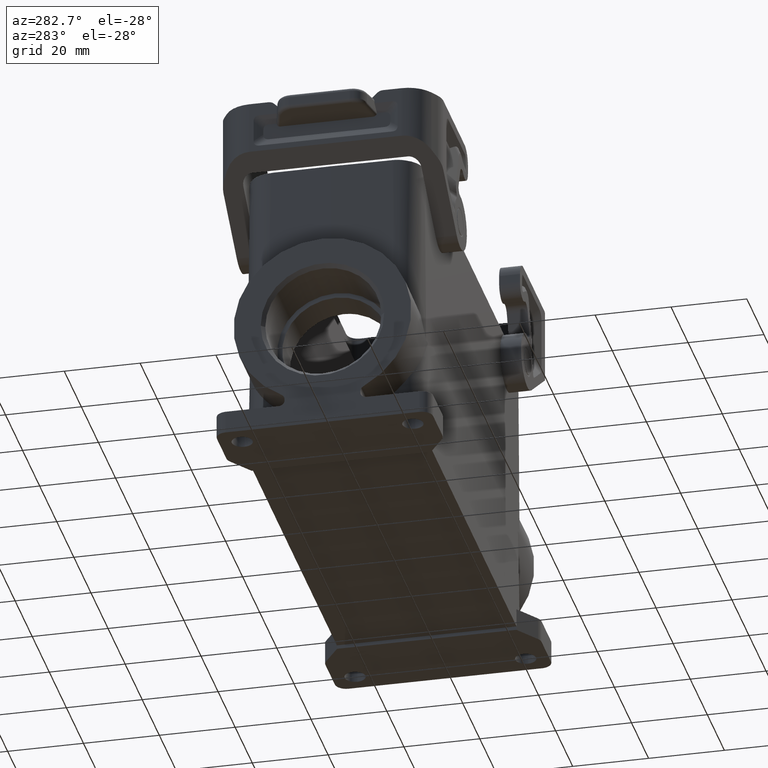
[diagram: clean part render]
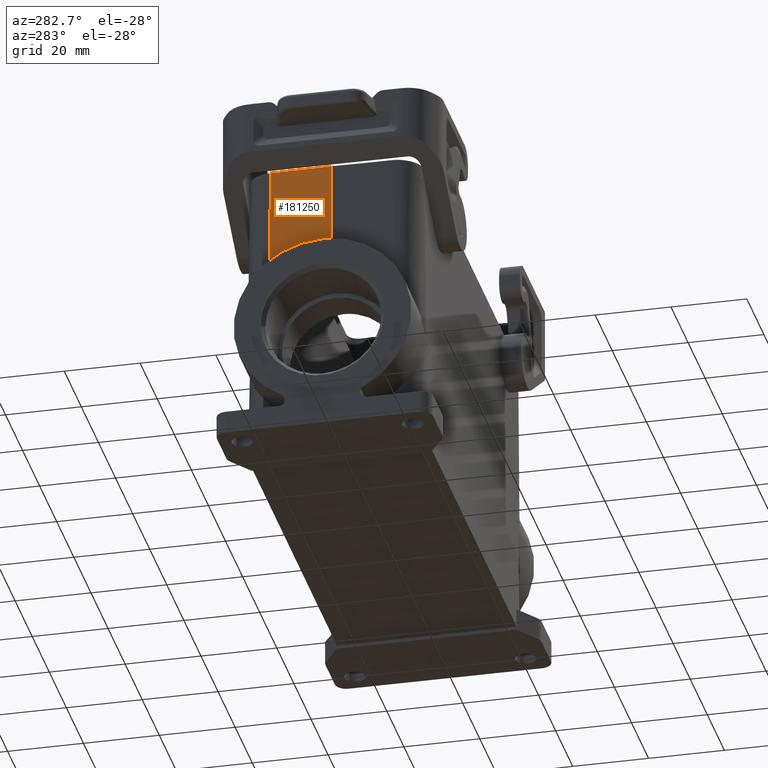
[diagram: same view with one face highlighted and labeled with its STEP entity id]
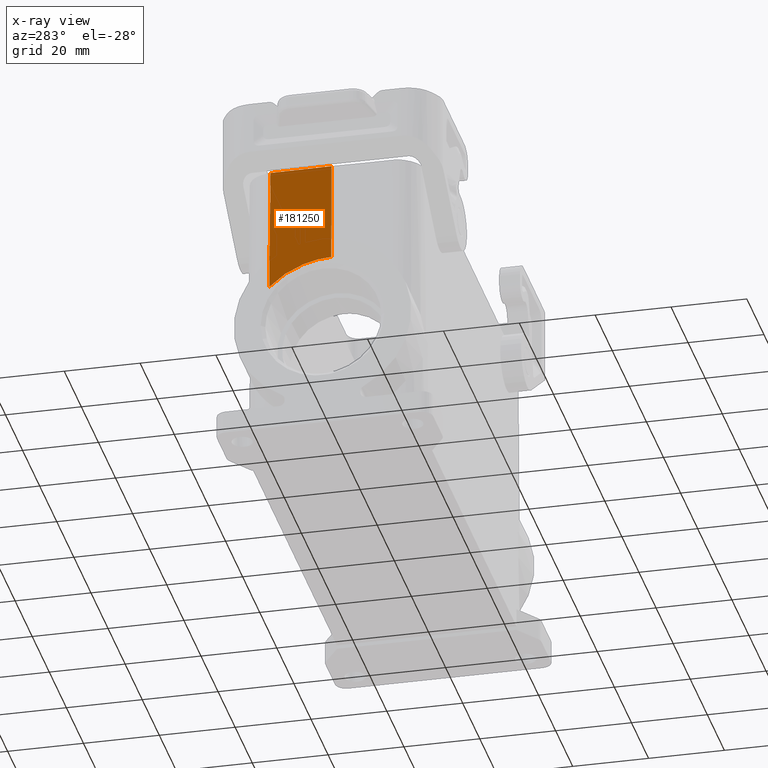
[diagram: x-ray of the same camera — body ghosted, the highlighted face saturated]
A machine part, auxiliary view. The second image highlights one B-rep face of the part: STEP entity #181250.
The next image is the same camera in x-ray: the body ghosted, the highlighted face saturated — about 0% of this face is hidden behind the body in this view.
In plain terms, the highlighted planar face has unit normal (0.9998, -0.0175, -0.0087).
Its self-contained STEP definition (entity closure, byte-faithful):
#5320=CARTESIAN_POINT('',(-87.7503613048472,-9.67116730991909,
-16.412789810437));
#5330=VERTEX_POINT('',#5320);
#5360=CARTESIAN_POINT('',(-88.1828454070989,-26.399607,
-6.06650146783849E-14));
#5370=DIRECTION('',(0.999809624019864,-0.00872520640474936,
0.0174524064372842));
#5380=DIRECTION('',(0.019511937814006,0.447087594178678,
-0.894277343677153));
#5390=AXIS2_PLACEMENT_3D('',#5360,#5370,#5380);
#5400=ELLIPSE('',#5390,23.4399134018829,23.4354510053947);
#5410=CARTESIAN_POINT('',(-87.9783273245581,-2.96415599460525,
4.07274228209724E-13));
#5420=VERTEX_POINT('',#5410);
#5430=EDGE_CURVE('',#5330,#5420,#5400,.T.);
#34680=CARTESIAN_POINT('',(-87.746502017561,23.600393,
4.06815478569653E-13));
#34690=VERTEX_POINT('',#34680);
#34720=CARTESIAN_POINT('',(-87.746502017561,23.600393,
-2.1316282072803E-14));
#34730=DIRECTION('',(0.0174530707943211,0.,-0.999847683559775));
#34740=VECTOR('',#34730,1.);
#34750=LINE('',#34720,#34740);
#34760=CARTESIAN_POINT('',(-87.4650731815186,23.600393,-16.1224333024201
));
#34770=VERTEX_POINT('',#34760);
#34780=EDGE_CURVE('',#34690,#34770,#34750,.T.);
#181040=CARTESIAN_POINT('',(-87.9524595270819,-7.105427357601E-15,
-7.17204073907851E-14));
#181050=DIRECTION('',(0.999809624019864,-0.00872520640474936,
0.0174524064372842));
#181060=DIRECTION('',(-0.00872653549837369,-0.999961923064171,
-2.71050543121376E-20));
#181070=AXIS2_PLACEMENT_3D('',#181040,#181050,#181060);
#181080=PLANE('',#181070);
#181090=CARTESIAN_POINT('',(-87.666911850397,0.0610764448332455,
-16.3278578058818));
#181100=DIRECTION('',(-0.00857389229669479,-0.999925167973668,
-0.00872621474155861));
#181110=VECTOR('',#181100,1.);
#181120=LINE('',#181090,#181110);
#181130=EDGE_CURVE('',#34770,#5330,#181120,.T.);
#181140=ORIENTED_EDGE('',*,*,#181130,.T.);
#181150=ORIENTED_EDGE('',*,*,#34780,.T.);
#181160=CARTESIAN_POINT('',(-87.9524595270819,-7.105427357601E-15,
3.85892909588436E-13));
#181170=DIRECTION('',(-0.00872653549837369,-0.999961923064171,
2.19401651635844E-17));
#181180=VECTOR('',#181170,1.);
#181190=LINE('',#181160,#181180);
#181200=EDGE_CURVE('',#34690,#5420,#181190,.T.);
#181210=ORIENTED_EDGE('',*,*,#181200,.F.);
#181220=ORIENTED_EDGE('',*,*,#5430,.T.);
#181230=EDGE_LOOP('',(#181220,#181210,#181150,#181140));
#181240=FACE_OUTER_BOUND('',#181230,.T.);
#181250=ADVANCED_FACE('',(#181240),#181080,.F.);